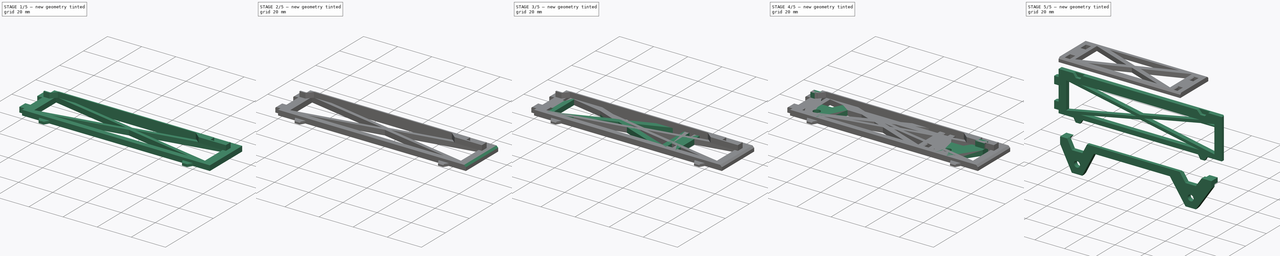
[diagram: build sequence overview — one tinted view per stage of 5, left to right]
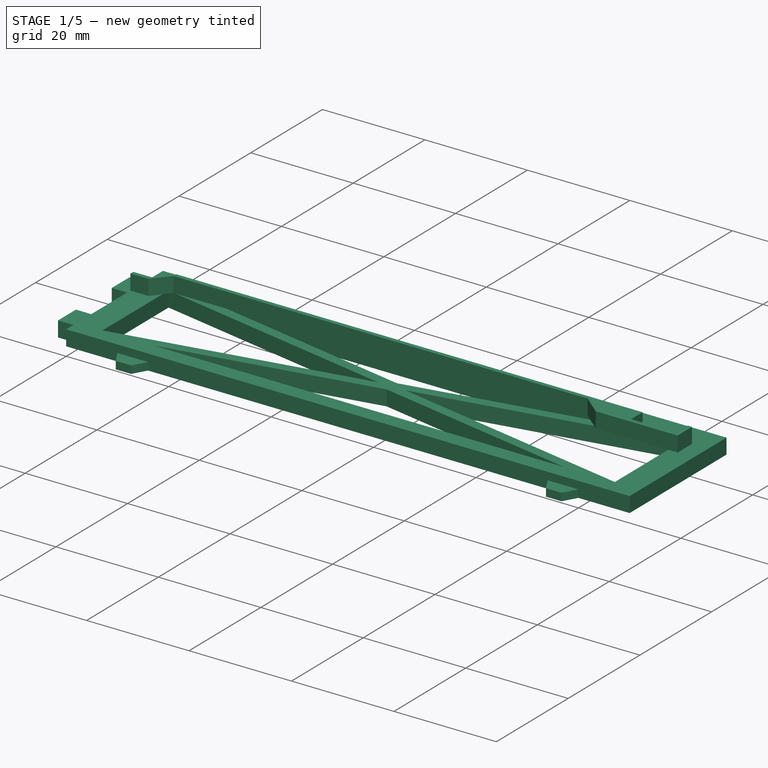
[diagram: stage 1 of 5 — iso view after this stage's code; geometry added in this stage tinted green]
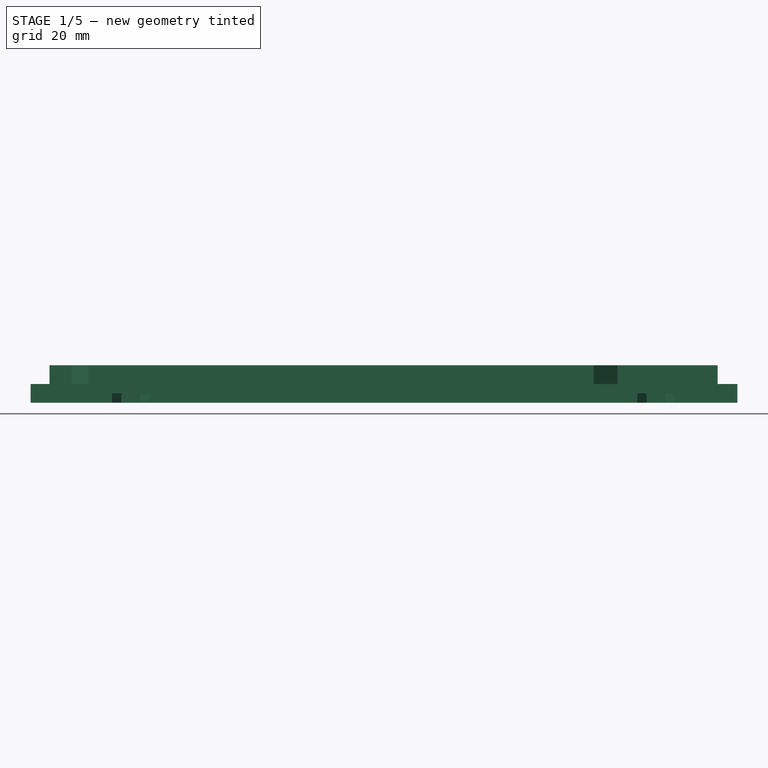
[diagram: stage 1 of 5 — front view after this stage's code; geometry added in this stage tinted green]
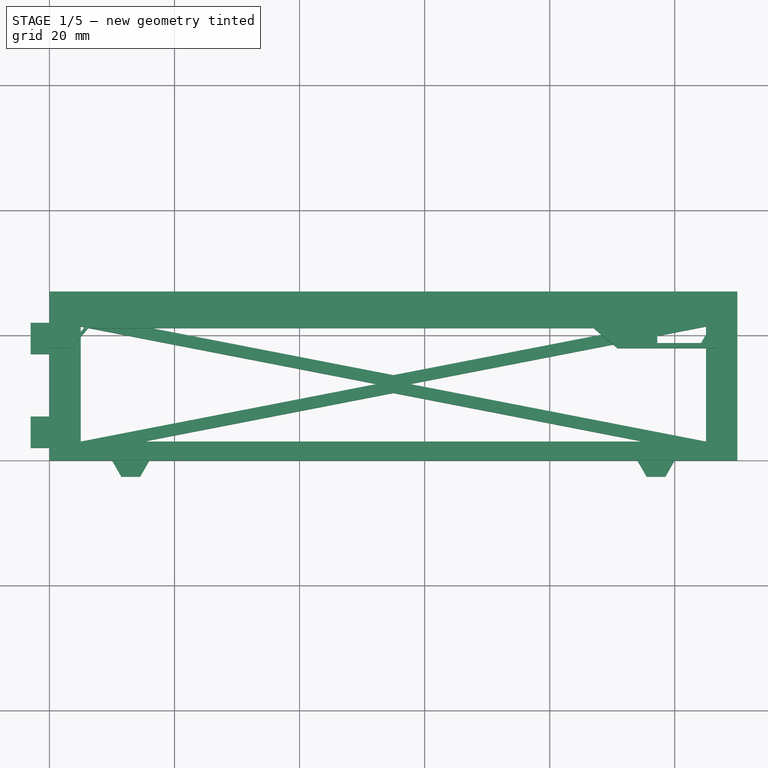
[diagram: stage 1 of 5 — top view after this stage's code; geometry added in this stage tinted green]
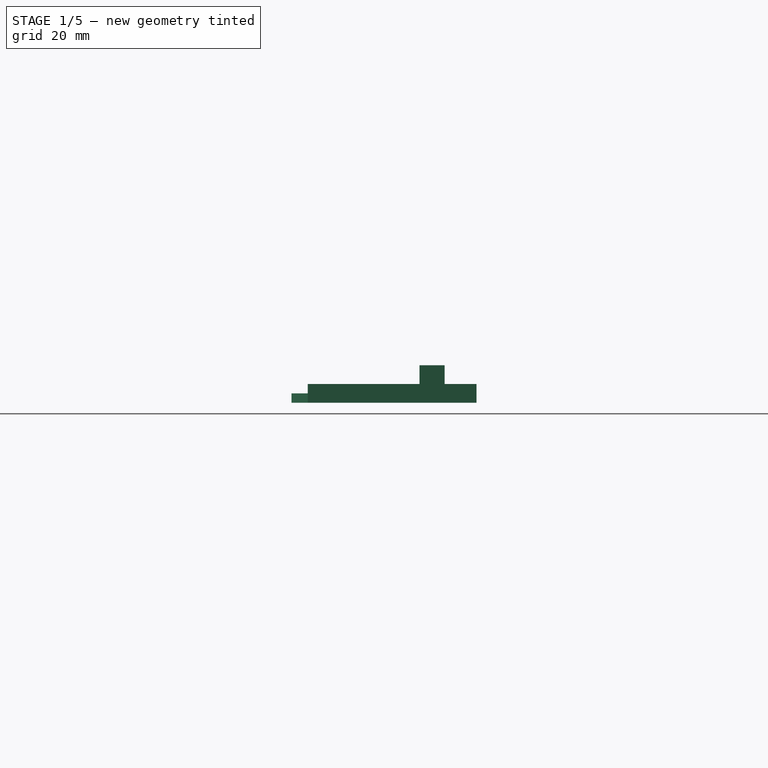
[diagram: stage 1 of 5 — right view after this stage's code; geometry added in this stage tinted green]
FCSTD DOCUMENT  (FreeCAD 0.19R24267 +99 (Git))
Label: CASE
License: All rights reserved
LicenseURL: http://en.wikipedia.org/wiki/All_rights_reserved
objects: PartDesign::Chamfer×15, Sketcher::SketchObject×8, PartDesign::Pad×5, PartDesign::Body×3, PartDesign::Pocket×3, Part::Mirroring×2
note: 59 computed .brp shape members not serialized (recipe doc carries the construction recipe); baked Part::Feature solids carry a one-line shape summary decoded from their .brp

FEATURE [Sketcher::SketchObject] Sketch002
  FullyConstrained = true
  MapMode = 5
  Support = -> [XY_Plane001]
  sketch-geometry (20):
    g0: LineSegment StartX=110 StartY=27 StartZ=0 EndX=110 EndY=0 EndZ=0
    g1: LineSegment StartX=0 StartY=0 StartZ=0 EndX=10 EndY=0 EndZ=0
    g2: LineSegment StartX=10 StartY=0 StartZ=0 EndX=11.5 EndY=-2.59808 EndZ=0
    g3: LineSegment StartX=11.5 StartY=-2.59808 StartZ=0 EndX=14.5 EndY=-2.59808 EndZ=0
    g4: LineSegment StartX=14.5 StartY=-2.59808 StartZ=0 EndX=16 EndY=0 EndZ=0
    g5: LineSegment StartX=16 StartY=0 StartZ=0 EndX=94 EndY=0 EndZ=0
    g6: LineSegment StartX=94 StartY=0 StartZ=0 EndX=95.5 EndY=-2.59808 EndZ=0
    g7: LineSegment StartX=95.5 StartY=-2.59808 StartZ=0 EndX=98.5 EndY=-2.59808 EndZ=0
    g8: LineSegment StartX=98.5 StartY=-2.59808 StartZ=0 EndX=100 EndY=0 EndZ=0
    g9: LineSegment StartX=100 StartY=0 StartZ=0 EndX=110 EndY=0 EndZ=0
    g10: LineSegment StartX=0 StartY=27 StartZ=0 EndX=0 EndY=22 EndZ=0
    g11: LineSegment StartX=0 StartY=22 StartZ=0 EndX=-3 EndY=22 EndZ=0
    g12: LineSegment StartX=-3 StartY=22 StartZ=0 EndX=-3 EndY=17 EndZ=0
    g13: LineSegment StartX=-3 StartY=17 StartZ=0 EndX=0 EndY=17 EndZ=0
    g14: LineSegment StartX=0 StartY=17 StartZ=0 EndX=0 EndY=7 EndZ=0
    g15: LineSegment StartX=0 StartY=7 StartZ=0 EndX=-3 EndY=7 EndZ=0
    g16: LineSegment StartX=-3 StartY=7 StartZ=0 EndX=-3 EndY=2 EndZ=0
    g17: LineSegment StartX=-3 StartY=2 StartZ=0 EndX=0 EndY=2 EndZ=0
    g18: LineSegment StartX=0 StartY=2 StartZ=0 EndX=0 EndY=0 EndZ=0
    g19: LineSegment StartX=0 StartY=27 StartZ=0 EndX=110 EndY=27 EndZ=0
  constraints (59):
    c: Vertical(g0)
    c: Horizontal(g1)
    c: Coincident(g1,g2)
    c: Coincident(g2,g3)
    c: Coincident(g3,g4)
    c: Coincident(g4,g5)
    c: Horizontal(g5)
    c: Coincident(g5,g6)
    c: Coincident(g6,g7)
    c: Horizontal(g7)
    c: Coincident(g7,g8)
    c: Coincident(g8,g9)
    c: Coincident(g9,g0)
    c: Horizontal(g9)
    c: Horizontal(g1,g4)
    c: Horizontal(g5,g8)
    c: Horizontal(g6,g3)
    c: Horizontal(g6,g2)
    c: Distance(g1) = 10
    c: Distance(g2) = 3
    c: Distance(g3) = 3
    c: Distance(g4) = 3
    c: Distance(g6) = 3
    c: Distance(g7) = 3
    c: Distance(g8) = 3
    c: Angle(g4,g3) = 2.0944
    c: Distance(g9) = 10
    c: PointOnObject(g10,g-2)
    c: Vertical(g10)
    c: Coincident(g10,g11)
    c: Coincident(g11,g12)
    c: Coincident(g12,g13)
    c: PointOnObject(g13,g-2)
    c: Coincident(g13,g14)
    c: PointOnObject(g14,g-2)
    c: Coincident(g14,g15)
    c: Coincident(g15,g16)
    c: Coincident(g16,g17)
    c: PointOnObject(g17,g-2)
    c: Coincident(g17,g18)
    c: Coincident(g18,g1)
    c: Vertical(g12,g15)
    c: Vertical(g12)
    c: Vertical(g16)
    c: Horizontal(g11)
    c: Horizontal(g13)
    c: Horizontal(g15)
    c: Horizontal(g17)
    c: Distance(g11) = 3
    c: Distance(g12) = 5
    c: Distance(g16) = 5
    c: Distance(g14) = 10
    c: Distance(g10,g10) = 5
    c: Distance(g0) = 27
    c: Coincident(g1,g-1)
    c: Distance(g10,g0) = 110
    c: Coincident(g19,g10)
    c: Coincident(g19,g0)
    c: Horizontal(g19)
FEATURE [PartDesign::Pad] Pad002
  Direction = (1,1,1)
  Length = 3
  Length2 = 100
  Profile = -> Sketch002
  Type = 0
FEATURE [Sketcher::SketchObject] Sketch006
  ExternalGeometry = -> [Pad002]
  FullyConstrained = true
  MapMode = 5
  Placement = pos=(0,0,0) rot=(1,0,0;3.14159rad)
  Support = -> [Pad002]
  sketch-geometry (8):
    g0: LineSegment StartX=9.8 StartY=-27 StartZ=0 EndX=11.5 EndY=-24.5 EndZ=0
    g1: LineSegment StartX=11.5 StartY=-24.5 StartZ=0 EndX=14.5 EndY=-24.5 EndZ=0
    g2: LineSegment StartX=14.5 StartY=-24.5 StartZ=0 EndX=16.2 EndY=-27 EndZ=0
    g3: LineSegment StartX=93.2 StartY=-27 StartZ=0 EndX=95.5 EndY=-24.5 EndZ=0
    g4: LineSegment StartX=95.5 StartY=-24.5 StartZ=0 EndX=98.5 EndY=-24.5 EndZ=0
    g5: LineSegment StartX=98.5 StartY=-24.5 StartZ=0 EndX=100.8 EndY=-27 EndZ=0
    g6: LineSegment StartX=100.8 StartY=-27 StartZ=0 EndX=93.2 EndY=-27 EndZ=0
    g7: LineSegment StartX=9.8 StartY=-27 StartZ=0 EndX=16.2 EndY=-27 EndZ=0
  constraints (26):
    c: Distance(g-4) = 10
    c: PointOnObject(g0,g-6)
    c: Coincident(g0,g1)
    c: Horizontal(g1)
    c: Coincident(g1,g2)
    c: PointOnObject(g2,g-6)
    c: PointOnObject(g3,g-6)
    c: Coincident(g3,g4)
    c: Horizontal(g4)
    c: Coincident(g4,g5)
    c: PointOnObject(g5,g-6)
    c: Coincident(g5,g6)
    c: Coincident(g6,g3)
    c: Coincident(g0,g7)
    c: Coincident(g7,g2)
    c: Vertical(g-3,g0)
    c: Vertical(g-5,g1)
    c: Vertical(g-7,g3)
    c: Vertical(g-7,g4)
    c: Distance(g-8) = 78
    c: Distance(g2,g3) = 77
    c: Distance(g0,g-6) = 9.8
    c: Equal(g0,g2)
    c: Equal(g3,g5)
    c: Horizontal(g1,g3)
    c: Distance(g4,g6) = 2.5
FEATURE [PartDesign::Pocket] Pocket
  BaseFeature = -> Pad002
  Length = 2
  Length2 = 100
  Profile = -> Sketch006
  Type = 0
FEATURE [Sketcher::SketchObject] Sketch007
  ExternalGeometry = -> [Pocket]
  FullyConstrained = true
  MapMode = 5
  Placement = pos=(0,0,3) rot=(0,0,1;0rad)
  Support = -> [Pocket]
  sketch-geometry (8):
    g0: LineSegment StartX=94 StartY=0 StartZ=0 EndX=100 EndY=0 EndZ=0
    g1: LineSegment StartX=100 StartY=0 StartZ=0 EndX=98.5 EndY=-2.59808 EndZ=0
    g2: LineSegment StartX=98.5 StartY=-2.59808 StartZ=0 EndX=95.5 EndY=-2.59808 EndZ=0
    g3: LineSegment StartX=95.5 StartY=-2.59808 StartZ=0 EndX=94 EndY=0 EndZ=0
    g4: LineSegment StartX=10 StartY=0 StartZ=0 EndX=11.5 EndY=-2.59808 EndZ=0
    g5: LineSegment StartX=11.5 StartY=-2.59808 StartZ=0 EndX=14.5 EndY=-2.59808 EndZ=0
    g6: LineSegment StartX=14.5 StartY=-2.59808 StartZ=0 EndX=16 EndY=0 EndZ=0
    g7: LineSegment StartX=16 StartY=0 StartZ=0 EndX=10 EndY=0 EndZ=0
  constraints (16):
    c: Coincident(g-4,g0)
    c: Coincident(g0,g-5)
    c: Coincident(g0,g1)
    c: Coincident(g1,g-5)
    c: Coincident(g1,g2)
    c: Coincident(g2,g-4)
    c: Coincident(g2,g3)
    c: Coincident(g3,g0)
    c: Coincident(g-8,g4)
    c: Coincident(g4,g-8)
    c: Coincident(g4,g5)
    c: Coincident(g5,g-7)
    c: Coincident(g5,g6)
    c: Coincident(g6,g-7)
    c: Coincident(g6,g7)
    c: Coincident(g7,g4)
FEATURE [PartDesign::Pocket] Pocket001
  BaseFeature = -> Pocket
  Length = 1.5
  Length2 = 100
  Profile = -> Sketch007
  Type = 0
FEATURE [Sketcher::SketchObject] Sketch005
  FullyConstrained = true
  MapMode = 5
  Placement = pos=(0,0,0) rot=(1,0,0;3.14159rad)
  Support = -> [Pocket001]
  sketch-geometry (12):
    g0: LineSegment StartX=5 StartY=-3 StartZ=0 EndX=5 EndY=-21.4019 EndZ=0
    g1: LineSegment StartX=5 StartY=-21.4019 StartZ=0 EndX=52.3348 EndY=-12.201 EndZ=0
    g2: LineSegment StartX=52.3348 StartY=-12.201 StartZ=0 EndX=5 EndY=-3 EndZ=0
    g3: LineSegment StartX=15 StartY=-3 StartZ=0 EndX=55 EndY=-10.7752 EndZ=0
    g4: LineSegment StartX=55 StartY=-10.7752 StartZ=0 EndX=95 EndY=-3 EndZ=0
    g5: LineSegment StartX=95 StartY=-3 StartZ=0 EndX=15 EndY=-3 EndZ=0
    g6: LineSegment StartX=57.6652 StartY=-12.201 StartZ=0 EndX=105 EndY=-3 EndZ=0
    g7: LineSegment StartX=105 StartY=-3 StartZ=0 EndX=105 EndY=-21.4019 EndZ=0
    g8: LineSegment StartX=105 StartY=-21.4019 StartZ=0 EndX=57.6652 EndY=-12.201 EndZ=0
    g9: LineSegment StartX=55 StartY=-13.6267 StartZ=0 EndX=15 EndY=-21.4019 EndZ=0
    g10: LineSegment StartX=15 StartY=-21.4019 StartZ=0 EndX=95 EndY=-21.4019 EndZ=0
    g11: LineSegment StartX=95 StartY=-21.4019 StartZ=0 EndX=55 EndY=-13.6267 EndZ=0
  constraints (36):
    c: Vertical(g0)
    c: Coincident(g0,g1)
    c: Coincident(g1,g2)
    c: Coincident(g2,g0)
    c: Coincident(g3,g4)
    c: Coincident(g4,g5)
    c: Coincident(g5,g3)
    c: Horizontal(g5)
    c: Coincident(g6,g7)
    c: Vertical(g7)
    c: Coincident(g7,g8)
    c: Coincident(g9,g10)
    c: Horizontal(g10)
    c: Coincident(g10,g11)
    c: Coincident(g11,g9)
    c: Vertical(g3,g9)
    c: Horizontal(g1,g6)
    c: Distance(g3,g-1) = 3
    c: Horizontal(g4,g6)
    c: Horizontal(g10,g7)
    c: Horizontal(g3,g0)
    c: Distance(g0,g9) = 10
    c: Distance(g10,g7) = 10
    c: Coincident(g6,g8)
    c: Equal(g2,g1)
    c: Equal(g6,g8)
    c: Equal(g4,g3)
    c: Equal(g9,g11)
    c: Equal(g2,g6)
    c: Equal(g4,g11)
    c: Distance(g-1,g0) = 5
    c: Parallel(g1,g9)
    c: Parallel(g2,g3)
    c: Angle(g2,g1) = 0.383972
    c: DistanceY(g9) = -21.4019
    c: DistanceX(g6) = 57.6652
FEATURE [PartDesign::Pocket] Pocket002
  BaseFeature = -> Pocket001
  Length = 3
  Length2 = 100
  Profile = -> Sketch005
  Type = 0
FEATURE [Sketcher::SketchObject] Sketch003
  ExternalGeometry = -> [Sketch002,Pad002]
  FullyConstrained = true
  MapMode = 5
  Placement = pos=(0,0,3) rot=(0,0,1;0rad)
  Support = -> [Pocket002]
  sketch-geometry (14):
    g0: LineSegment StartX=0 StartY=18.7 StartZ=0 EndX=3.5 EndY=18.7 EndZ=0
    g1: LineSegment StartX=3.5 StartY=18.7 StartZ=0 EndX=6.2 EndY=21.9 EndZ=0
    g2: LineSegment StartX=6.2 StartY=21.9 StartZ=0 EndX=97.2 EndY=21.9 EndZ=0
    g3: LineSegment StartX=97.2 StartY=21.9 StartZ=0 EndX=97.2 EndY=18.7 EndZ=0
    g4: LineSegment StartX=0 StartY=17.9 StartZ=0 EndX=0 EndY=18.7 EndZ=0
    g5: LineSegment StartX=97.2 StartY=18.7 StartZ=0 EndX=104.2 EndY=18.7 EndZ=0
    g6: LineSegment StartX=0 StartY=17.9 StartZ=0 EndX=3.5 EndY=17.9 EndZ=0
    g7: LineSegment StartX=3.5 StartY=17.9 StartZ=0 EndX=6.2 EndY=21.1 EndZ=0
    g8: LineSegment StartX=6.2 StartY=21.1 StartZ=0 EndX=87.0173 EndY=21.1 EndZ=0
    g9: LineSegment StartX=104.2 StartY=18.7 StartZ=0 EndX=106.048 EndY=21.9 EndZ=0
    g10: LineSegment StartX=106.048 StartY=21.9 StartZ=0 EndX=106.848 EndY=21.9 EndZ=0
    g11: LineSegment StartX=106.848 StartY=21.9 StartZ=0 EndX=106.848 EndY=17.8861 EndZ=0
    g12: LineSegment StartX=106.848 StartY=17.8861 StartZ=0 EndX=90.8475 EndY=17.8861 EndZ=0
    g13: LineSegment StartX=87.0173 StartY=21.1 StartZ=0 EndX=90.8475 EndY=17.8861 EndZ=0
  constraints (42):
    c: PointOnObject(g0,g-2)
    c: Horizontal(g0)
    c: Coincident(g0,g1)
    c: Coincident(g1,g2)
    c: Horizontal(g2)
    c: Coincident(g2,g3)
    c: Vertical(g3)
    c: PointOnObject(g4,g-2)
    c: Coincident(g4,g0)
    c: Distance(g2) = 91
    c: Distance(g0) = 3.5
    c: Distance(g0,g-1) = 18.7
    c: Horizontal(g3,g0)
    c: Distance(g0,g2) = 3.2
    c: Distance(g1,g-2) = 6.2
    c: Coincident(g5,g3)
    c: Horizontal(g5)
    c: Coincident(g4,g6)
    c: Horizontal(g6)
    c: Coincident(g6,g7)
    c: Coincident(g7,g8)
    c: Horizontal(g8)
    c: Distance(g8,g2) = 0.8
    c: Vertical(g1,g7)
    c: Distance(g4) = 0.8
    c: Vertical(g0,g6)
    c: Coincident(g5,g9)
    c: Coincident(g9,g10)
    c: Horizontal(g10)
    c: Coincident(g10,g11)
    c: Vertical(g11)
    c: Coincident(g11,g12)
    c: Horizontal(g12)
    c: Horizontal(g2,g9)
    c: Coincident(g8,g13)
    c: Coincident(g12,g13)
    c: Distance(g12) = 16
    c: Distance(g10) = 0.8
    c: Angle(g9,g5) = 2.0944
    c: Distance(g13) = 5
    c: Angle(g12,g13) = 2.44346
    c: Distance(g5) = 7
FEATURE [PartDesign::Pad] Pad006
  BaseFeature = -> Pocket002
  Direction = (1,1,1)
  Length = 3
  Length2 = 100
  Profile = -> Sketch003
  Type = 0
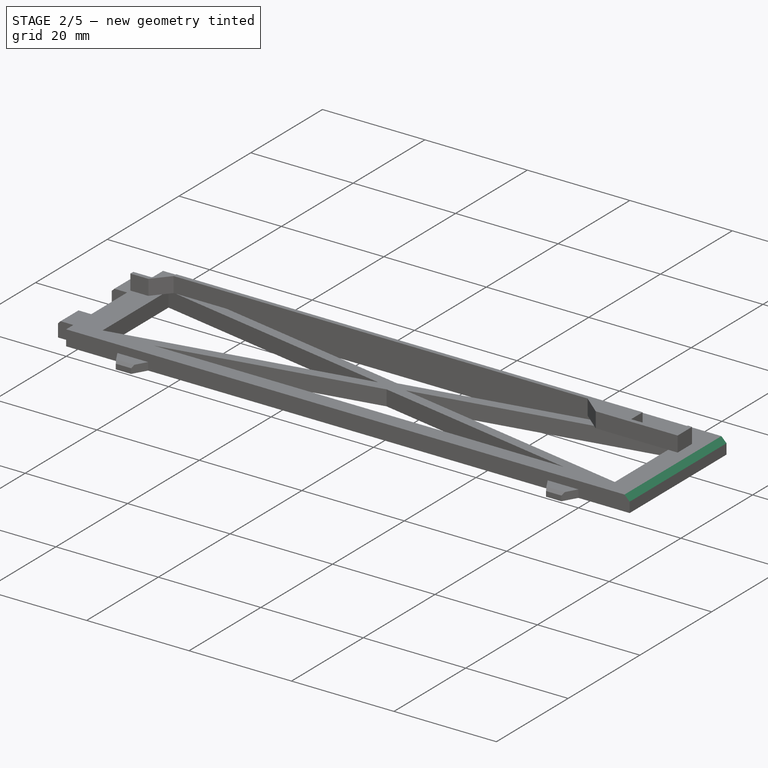
[diagram: stage 2 of 5 — iso view after this stage's code; geometry added in this stage tinted green]
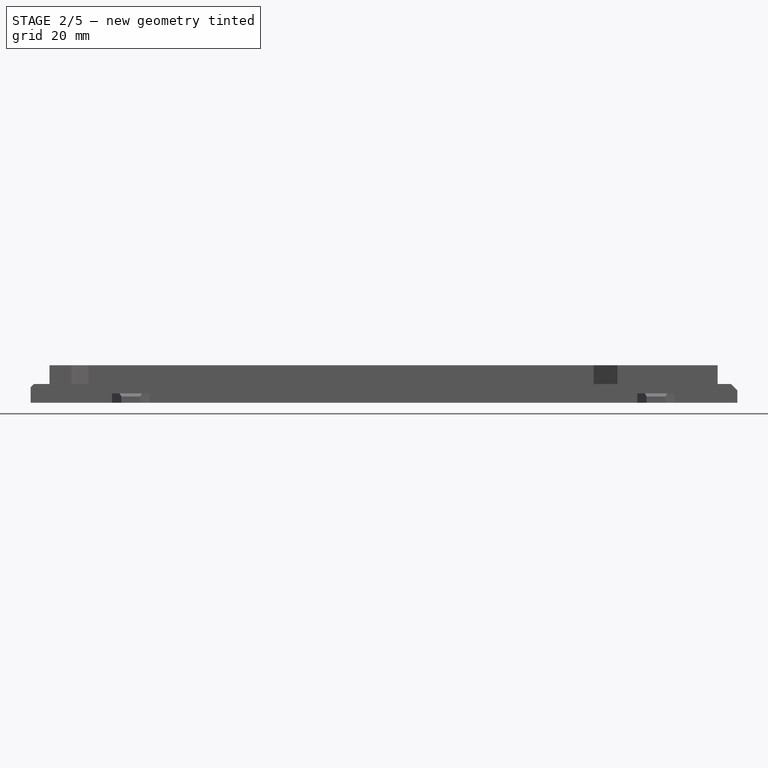
[diagram: stage 2 of 5 — front view after this stage's code; geometry added in this stage tinted green]
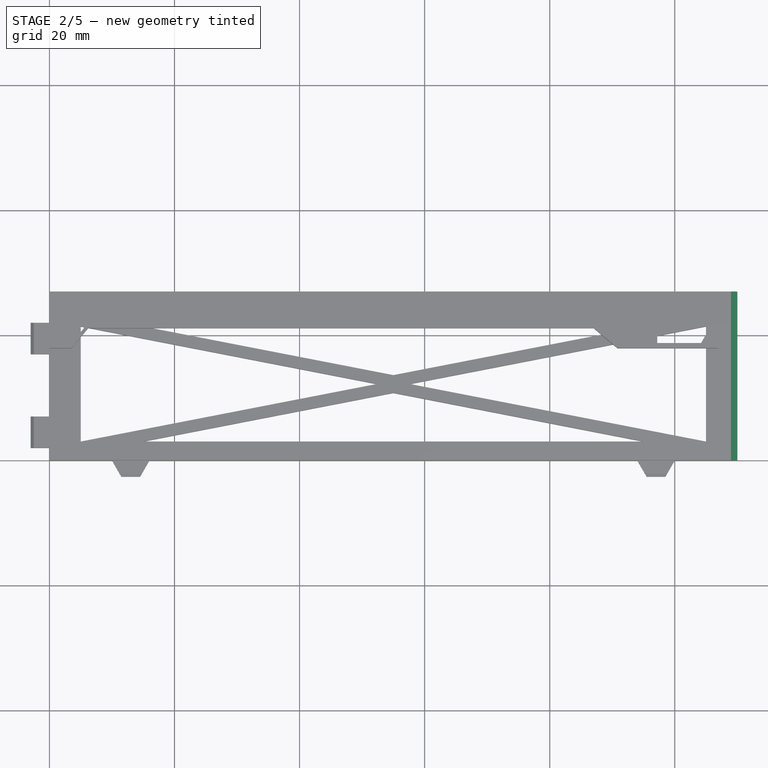
[diagram: stage 2 of 5 — top view after this stage's code; geometry added in this stage tinted green]
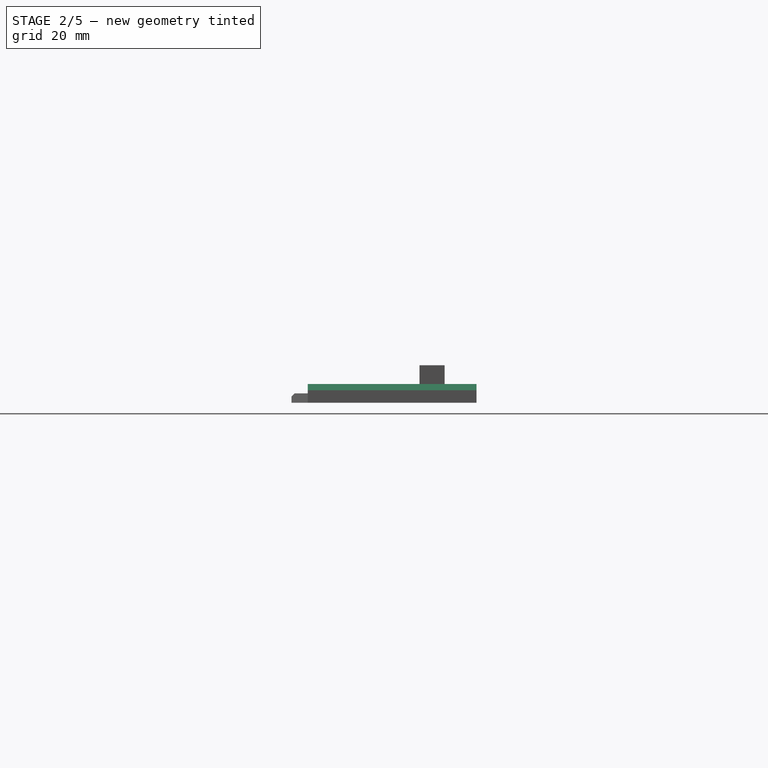
[diagram: stage 2 of 5 — right view after this stage's code; geometry added in this stage tinted green]
FEATURE [PartDesign::Chamfer] Chamfer014
  Angle = 45
  Base = -> Pad006 [Edge61]
  BaseFeature = -> Pad006
  ChamferType = 0
  FlipDirection = false
  Size = 1
  Size2 = 1
  SupportTransform = false
FEATURE [PartDesign::Chamfer] Chamfer015
  Angle = 45
  Base = -> Chamfer014 [Edge129]
  BaseFeature = -> Chamfer014
  ChamferType = 0
  FlipDirection = false
  Size = 0.5
  Size2 = 1
  SupportTransform = false
FEATURE [PartDesign::Chamfer] Chamfer016
  Angle = 45
  Base = -> Chamfer015 [Edge135]
  BaseFeature = -> Chamfer015
  ChamferType = 0
  FlipDirection = false
  Size = 0.5
  Size2 = 1
  SupportTransform = false
FEATURE [PartDesign::Body] Body002
  Group = -> [Sketch004,Pad004,Chamfer017,Chamfer018,Chamfer019,Chamfer020,Chamfer021,Chamfer022]
  Origin = -> Origin002
  Placement = pos=(-38,0,-34) rot=(0.57735,0.57735,0.57735;4.18879rad)
  Tip = -> Chamfer022
FEATURE [PartDesign::Chamfer] Chamfer023
  Angle = 45
  Base = -> Chamfer016 [Edge72]
  BaseFeature = -> Chamfer016
  ChamferType = 0
  FlipDirection = false
  Size = 0.5
  Size2 = 1
  SupportTransform = false
FEATURE [PartDesign::Chamfer] Chamfer024
  Angle = 45
  Base = -> Chamfer023 [Edge56]
  BaseFeature = -> Chamfer023
  ChamferType = 0
  FlipDirection = false
  Size = 0.5
  Size2 = 1
  SupportTransform = false
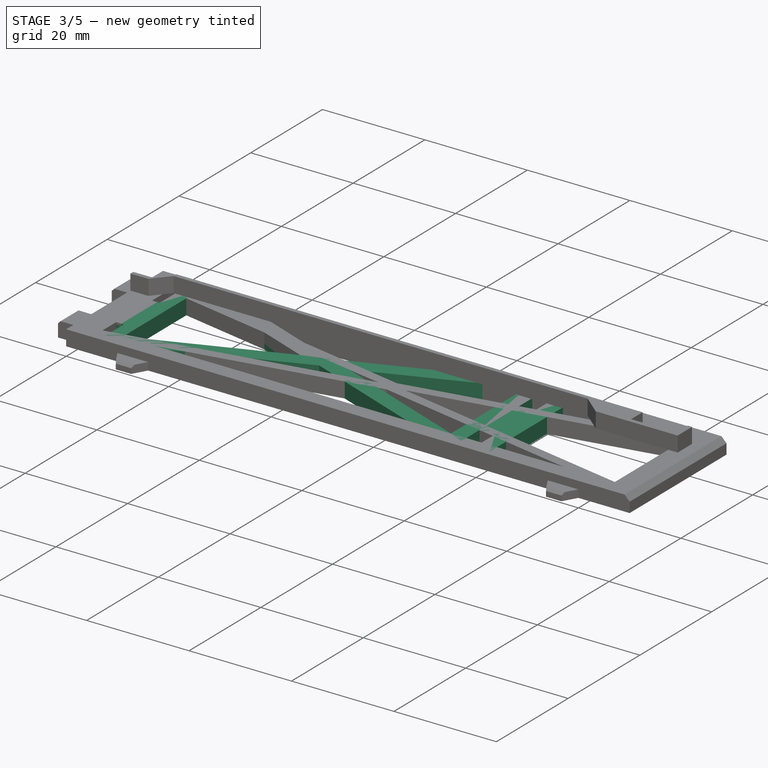
[diagram: stage 3 of 5 — iso view after this stage's code; geometry added in this stage tinted green]
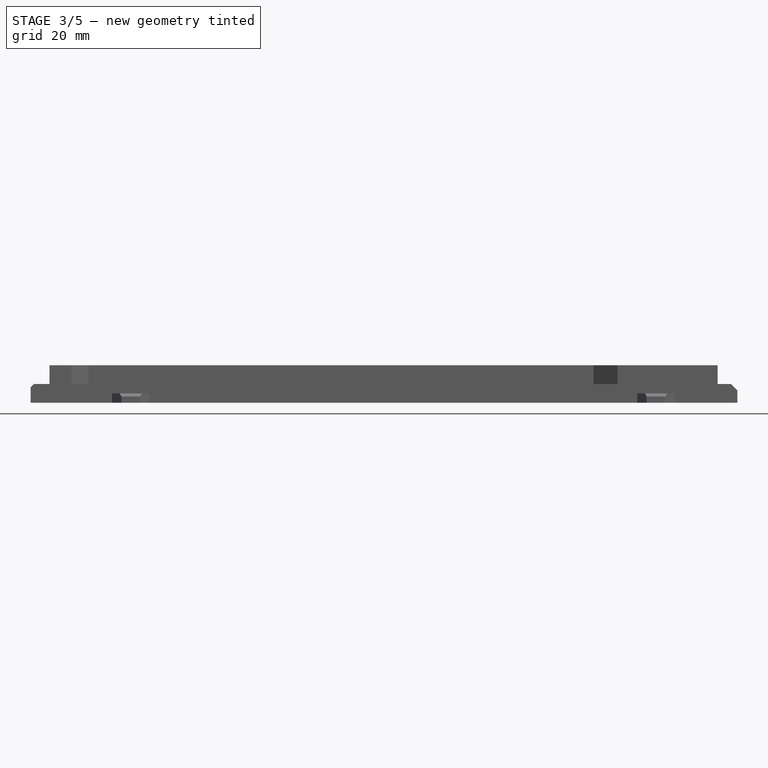
[diagram: stage 3 of 5 — front view after this stage's code; geometry added in this stage tinted green]
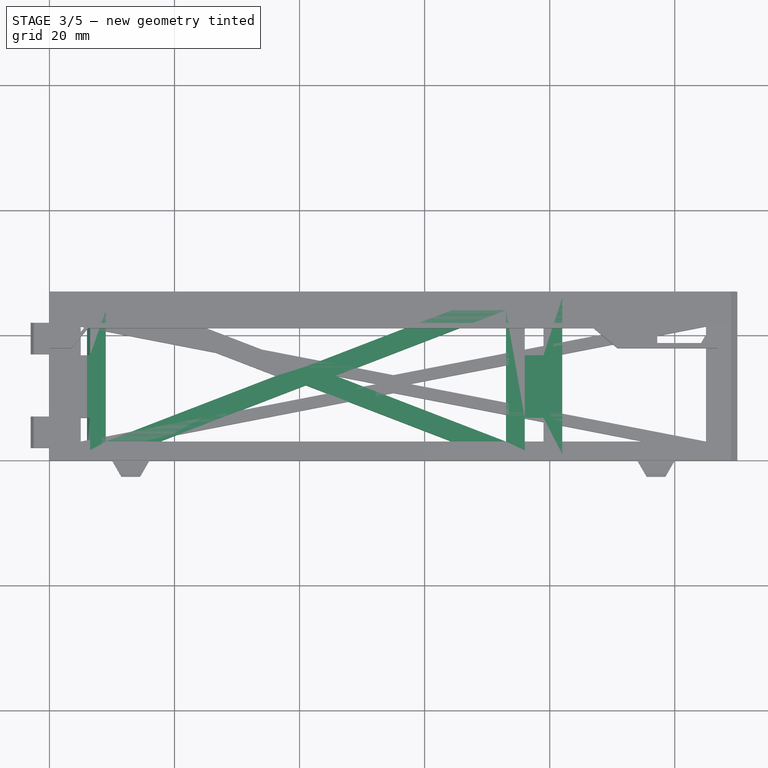
[diagram: stage 3 of 5 — top view after this stage's code; geometry added in this stage tinted green]
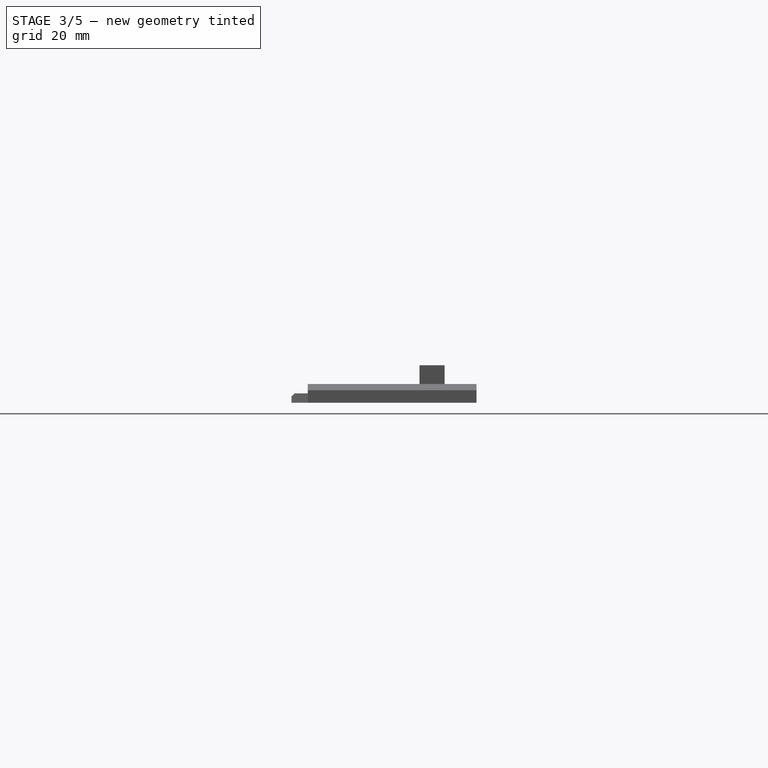
[diagram: stage 3 of 5 — right view after this stage's code; geometry added in this stage tinted green]
FEATURE [Sketcher::SketchObject] Sketch004
  FullyConstrained = true
  MapMode = 5
  Support = -> [XY_Plane002]
  sketch-geometry (32):
    g0: LineSegment StartX=0 StartY=0 StartZ=0 EndX=82 EndY=0 EndZ=0
    g1: LineSegment StartX=82 StartY=0 StartZ=0 EndX=82 EndY=27 EndZ=0
    g2: LineSegment StartX=82 StartY=27 StartZ=0 EndX=0 EndY=27 EndZ=0
    g3: LineSegment StartX=0 StartY=27 StartZ=0 EndX=0 EndY=0 EndZ=0
    g4: LineSegment StartX=6 StartY=22 StartZ=0 EndX=3 EndY=22 EndZ=0
    g5: LineSegment StartX=3 StartY=22 StartZ=0 EndX=3 EndY=16.8 EndZ=0
    g6: LineSegment StartX=3 StartY=16.8 StartZ=0 EndX=6 EndY=16.8 EndZ=0
    g7: LineSegment StartX=6 StartY=16.8 StartZ=0 EndX=6 EndY=22 EndZ=0
    g8: LineSegment StartX=3 StartY=6.8 StartZ=0 EndX=6 EndY=6.8 EndZ=0
    g9: LineSegment StartX=6 StartY=6.8 StartZ=0 EndX=6 EndY=1.6 EndZ=0
    g10: LineSegment StartX=6 StartY=1.6 StartZ=0 EndX=3 EndY=1.6 EndZ=0
    g11: LineSegment StartX=3 StartY=1.6 StartZ=0 EndX=3 EndY=6.8 EndZ=0
    g12: LineSegment StartX=76 StartY=22 StartZ=0 EndX=79 EndY=22 EndZ=0
    g13: LineSegment StartX=79 StartY=22 StartZ=0 EndX=79 EndY=16.8 EndZ=0
    g14: LineSegment StartX=79 StartY=16.8 StartZ=0 EndX=76 EndY=16.8 EndZ=0
    g15: LineSegment StartX=76 StartY=16.8 StartZ=0 EndX=76 EndY=22 EndZ=0
    g16: LineSegment StartX=79 StartY=6.8 StartZ=0 EndX=76 EndY=6.8 EndZ=0
    g17: LineSegment StartX=76 StartY=6.8 StartZ=0 EndX=76 EndY=1.6 EndZ=0
    g18: LineSegment StartX=76 StartY=1.6 StartZ=0 EndX=79 EndY=1.6 EndZ=0
    g19: LineSegment StartX=79 StartY=1.6 StartZ=0 EndX=79 EndY=6.8 EndZ=0
    g20: LineSegment StartX=9 StartY=24 StartZ=0 EndX=9 EndY=3 EndZ=0
    g21: LineSegment StartX=9 StartY=3 StartZ=0 EndX=36.2303 EndY=13.5 EndZ=0
    g22: LineSegment StartX=36.2303 StartY=13.5 StartZ=0 EndX=9 EndY=24 EndZ=0
    g23: LineSegment StartX=45.7697 StartY=13.5 StartZ=0 EndX=73 EndY=24 EndZ=0
    g24: LineSegment StartX=73 StartY=24 StartZ=0 EndX=73 EndY=3 EndZ=0
    g25: LineSegment StartX=73 StartY=3 StartZ=0 EndX=45.7697 EndY=13.5 EndZ=0
    g26: LineSegment StartX=17.6597 StartY=24 StartZ=0 EndX=64.3403 EndY=24 EndZ=0
    g27: LineSegment StartX=64.3403 StartY=24 StartZ=0 EndX=41 EndY=15 EndZ=0
    g28: LineSegment StartX=41 StartY=15 StartZ=0 EndX=17.6597 EndY=24 EndZ=0
    g29: LineSegment StartX=41 StartY=12 StartZ=0 EndX=17.6597 EndY=3 EndZ=0
    g30: LineSegment StartX=17.6597 StartY=3 StartZ=0 EndX=64.3403 EndY=3 EndZ=0
    g31: LineSegment StartX=64.3403 StartY=3 StartZ=0 EndX=41 EndY=12 EndZ=0
  constraints (95):
    c: Coincident(g0,g1)
    c: Coincident(g1,g2)
    c: Coincident(g2,g3)
    c: Coincident(g3,g0)
    c: Horizontal(g0)
    c: Horizontal(g2)
    c: Vertical(g1)
    c: Vertical(g3)
    c: Coincident(g0,g-1)
    c: Distance(g1) = 27
    c: Coincident(g4,g5)
    c: Coincident(g5,g6)
    c: Coincident(g6,g7)
    c: Coincident(g7,g4)
    c: Horizontal(g4)
    c: Horizontal(g6)
    c: Vertical(g5)
    c: Vertical(g7)
    c: Coincident(g8,g9)
    c: Coincident(g9,g10)
    c: Coincident(g10,g11)
    c: Coincident(g11,g8)
    c: Horizontal(g8)
    c: Horizontal(g10)
    c: Vertical(g9)
    c: Vertical(g11)
    c: Coincident(g12,g13)
    c: Coincident(g13,g14)
    c: Coincident(g14,g15)
    c: Coincident(g15,g12)
    c: Horizontal(g12)
    c: Horizontal(g14)
    c: Vertical(g13)
    c: Vertical(g15)
    c: Coincident(g16,g17)
    c: Coincident(g17,g18)
    c: Coincident(g18,g19)
    c: Coincident(g19,g16)
    c: Horizontal(g16)
    c: Horizontal(g18)
    c: Vertical(g17)
    c: Vertical(g19)
    c: Distance(g4) = 3
    c: Distance(g14) = 3
    c: Distance(g13) = 5.2
    c: Vertical(g16,g14)
    c: Vertical(g16,g13)
    c: Horizontal(g4,g12)
    c: Horizontal(g6,g14)
    c: Distance(g19) = 5.2
    c: Distance(g13,g16) = 10
    c: Vertical(g6,g8)
    c: Vertical(g8,g5)
    c: Horizontal(g9,g17)
    c: Horizontal(g8,g16)
    c: Distance(g4,g3) = 3
    c: Distance(g12,g1) = 3
    c: Distance(g4,g2) = 5
    c: Vertical(g20)
    c: Coincident(g20,g21)
    c: Coincident(g21,g22)
    c: Coincident(g22,g20)
    c: Coincident(g23,g24)
    c: Vertical(g24)
    c: Coincident(g24,g25)
    c: Coincident(g25,g23)
    c: Horizontal(g26)
    c: Coincident(g26,g27)
    c: Coincident(g27,g28)
    c: Coincident(g28,g26)
    c: Coincident(g29,g30)
    c: Horizontal(g30)
    c: Coincident(g30,g31)
    c: Coincident(g31,g29)
    c: Distance(g27,g21) = 5
    c: Distance(g27,g23) = 5
    c: Horizontal(g21,g23)
    c: Vertical(g27,g29)
    c: Distance(g27,g29) = 3
    c: Distance(g21,g29) = 5
    c: Horizontal(g20,g26)
    c: Horizontal(g20,g29)
    c: Horizontal(g24,g30)
    c: Horizontal(g23,g26)
    c: Parallel(g27,g23)
    c: Parallel(g25,g31)
    c: Parallel(g28,g22)
    c: Parallel(g21,g29)
    c: Distance(g26,g2) = 3
    c: Distance(g30,g0) = 3
    c: Distance(g20,g9) = 3
    c: Distance(g24,g17) = 3
    c: Equal(g26,g30)
    c: Equal(g22,g23)
    c: Distance(g4,g12) = 70
FEATURE [PartDesign::Pad] Pad004
  Direction = (1,1,1)
  Length = 3
  Length2 = 100
  Profile = -> Sketch004
  Type = 0
FEATURE [PartDesign::Chamfer] Chamfer017
  Angle = 45
  Base = -> Pad004 [Edge4]
  BaseFeature = -> Pad004
  ChamferType = 0
  FlipDirection = false
  Size = 1
  Size2 = 1
  SupportTransform = false
FEATURE [PartDesign::Chamfer] Chamfer018
  Angle = 45
  Base = -> Chamfer017 [Edge43]
  BaseFeature = -> Chamfer017
  ChamferType = 0
  FlipDirection = false
  Size = 1
  Size2 = 1
  SupportTransform = false
FEATURE [PartDesign::Chamfer] Chamfer019
  Angle = 45
  Base = -> Chamfer018 [Edge35]
  BaseFeature = -> Chamfer018
  ChamferType = 0
  FlipDirection = false
  Size = 0.5
  Size2 = 1
  SupportTransform = false
FEATURE [PartDesign::Chamfer] Chamfer020
  Angle = 45
  Base = -> Chamfer019 [Edge27]
  BaseFeature = -> Chamfer019
  ChamferType = 0
  FlipDirection = false
  Size = 0.5
  Size2 = 1
  SupportTransform = false
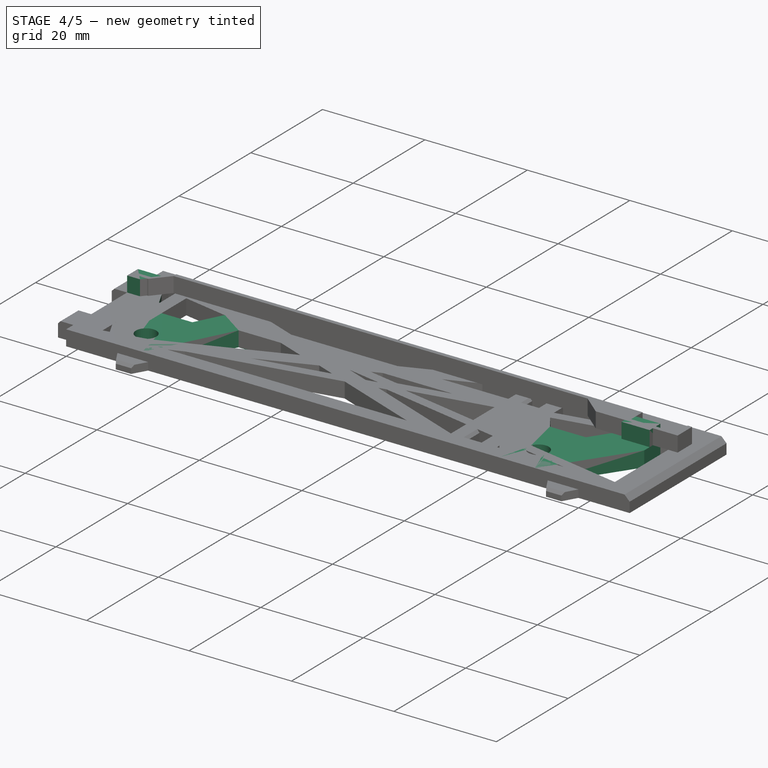
[diagram: stage 4 of 5 — iso view after this stage's code; geometry added in this stage tinted green]
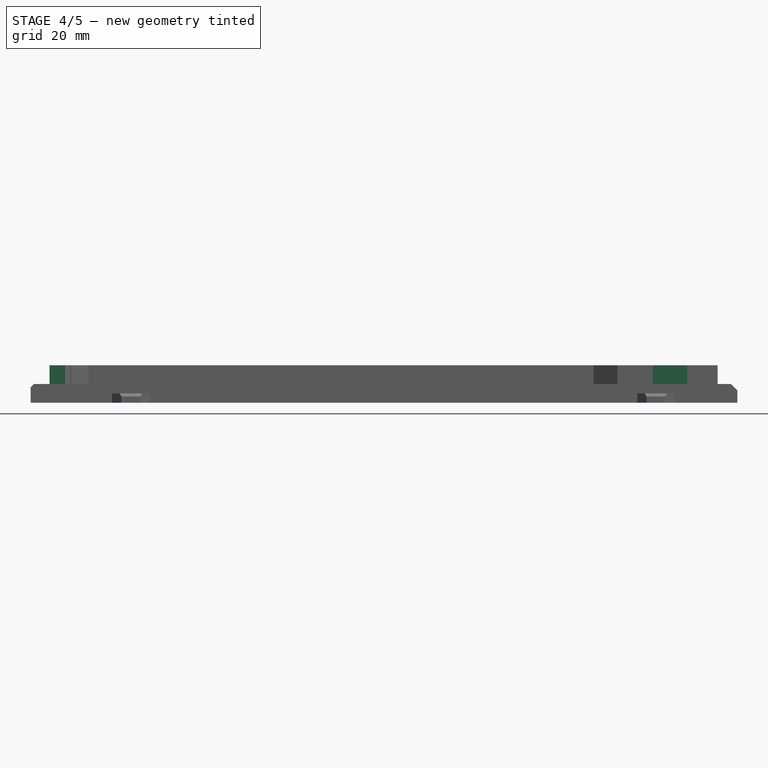
[diagram: stage 4 of 5 — front view after this stage's code; geometry added in this stage tinted green]
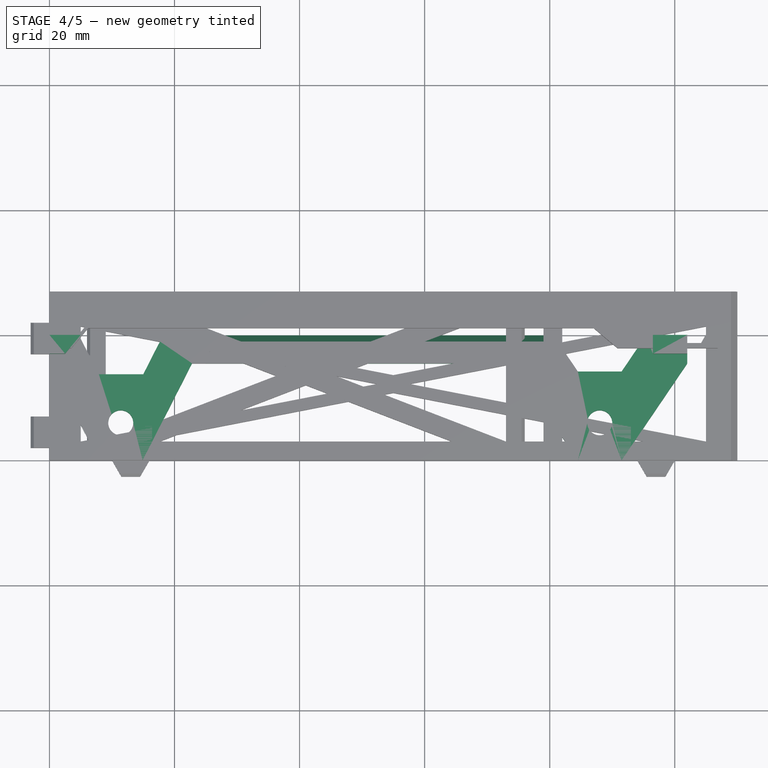
[diagram: stage 4 of 5 — top view after this stage's code; geometry added in this stage tinted green]
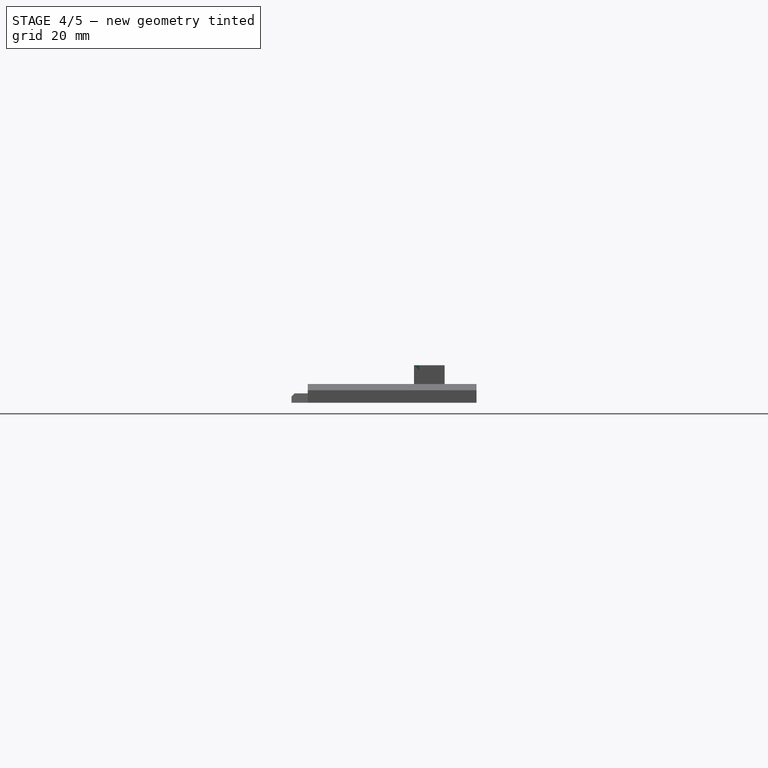
[diagram: stage 4 of 5 — right view after this stage's code; geometry added in this stage tinted green]
FEATURE [Sketcher::SketchObject] Sketch
  FullyConstrained = true
  MapMode = 5
  Support = -> [XY_Plane]
  sketch-geometry (24):
    g0: LineSegment StartX=102 StartY=15.5 StartZ=0 EndX=102 EndY=20 EndZ=0
    g1: LineSegment StartX=0 StartY=20 StartZ=0 EndX=0 EndY=15.5 EndZ=0
    g2: Circle CenterX=11.4 CenterY=6 CenterZ=0 NormalX=0 NormalY=0 NormalZ=1 AngleXU=0 Radius=2
    g3: Circle CenterX=88 CenterY=6 CenterZ=0 NormalX=0 NormalY=0 NormalZ=1 AngleXU=0 Radius=2
    g4: LineSegment StartX=102 StartY=15.5 StartZ=0 EndX=91.5 EndY=0 EndZ=0
    g5: LineSegment StartX=91.5 StartY=0 StartZ=0 EndX=84.5 EndY=0 EndZ=0
    g6: LineSegment StartX=84.5 StartY=0 StartZ=0 EndX=74 EndY=15.5 EndZ=0
    g7: LineSegment StartX=74 StartY=15.5 StartZ=0 EndX=22.8 EndY=15.5 EndZ=0
    g8: LineSegment StartX=22.8 StartY=15.5 StartZ=0 EndX=14.9 EndY=0 EndZ=0
    g9: LineSegment StartX=14.9 StartY=0 StartZ=0 EndX=7.9 EndY=0 EndZ=0
    g10: LineSegment StartX=7.9 StartY=0 StartZ=0 EndX=0 EndY=15.5 EndZ=0
    g11: LineSegment StartX=11.4 StartY=6 StartZ=0 EndX=7.9 EndY=0 EndZ=0
    g12: LineSegment StartX=11.4 StartY=6 StartZ=0 EndX=14.9 EndY=0 EndZ=0
    g13: LineSegment StartX=88 StartY=6 StartZ=0 EndX=84.5 EndY=0 EndZ=0
    g14: LineSegment StartX=88 StartY=6 StartZ=0 EndX=91.5 EndY=0 EndZ=0
    g15: LineSegment StartX=0 StartY=20 StartZ=0 EndX=4.72131 EndY=20 EndZ=0
    g16: LineSegment StartX=4.72131 StartY=20 StartZ=0 EndX=7.9 EndY=13.7633 EndZ=0
    g17: LineSegment StartX=7.9 StartY=13.7633 StartZ=0 EndX=15 EndY=13.7633 EndZ=0
    g18: LineSegment StartX=15 StartY=13.7633 StartZ=0 EndX=18.1787 EndY=20 EndZ=0
    g19: LineSegment StartX=18.1787 StartY=20 StartZ=0 EndX=80.5741 EndY=20 EndZ=0
    g20: LineSegment StartX=80.5741 StartY=20 StartZ=0 EndX=84.5 EndY=14.2046 EndZ=0
    g21: LineSegment StartX=84.5 StartY=14.2046 StartZ=0 EndX=91.5 EndY=14.2046 EndZ=0
    g22: LineSegment StartX=91.5 StartY=14.2046 StartZ=0 EndX=95.4259 EndY=20 EndZ=0
    g23: LineSegment StartX=95.4259 StartY=20 StartZ=0 EndX=102 EndY=20 EndZ=0
  constraints (68):
    c: Vertical(g0)
    c: Vertical(g1)
    c: Horizontal(g2,g3)
    c: Distance(g3,g0) = 14
    c: Distance(g2,g0) = 90.6
    c: Radius(g3) = 2
    c: Equal(g3,g2)
    c: Coincident(g4,g5)
    c: Horizontal(g5)
    c: Coincident(g5,g6)
    c: Equal(g6,g4)
    c: Horizontal(g6,g4)
    c: Coincident(g6,g7)
    c: Horizontal(g7)
    c: Coincident(g7,g8)
    c: Coincident(g8,g9)
    c: Horizontal(g9)
    c: Coincident(g9,g10)
    c: Horizontal(g10,g7)
    c: Equal(g10,g8)
    c: Coincident(g1,g10)
    c: Coincident(g0,g4)
    c: Distance(g3,g5) = 6
    c: Horizontal(g8,g5)
    c: PointOnObject(g9,g-1)
    c: PointOnObject(g1,g-2)
    c: Distance(g1) = 4.5
    c: Coincident(g11,g2)
    c: Coincident(g11,g9)
    c: Coincident(g12,g2)
    c: Coincident(g12,g8)
    c: Equal(g11,g12)
    c: Coincident(g13,g3)
    c: Coincident(g13,g5)
    c: Coincident(g14,g3)
    c: Coincident(g14,g4)
    c: Equal(g13,g14)
    c: Equal(g9,g5)
    c: Distance(g9) = 7
    c: Distance(g0,g1) = 102
    c: Coincident(g1,g15)
    c: Horizontal(g15)
    c: Coincident(g15,g16)
    c: Coincident(g16,g17)
    c: Horizontal(g17)
    c: Coincident(g17,g18)
    c: Coincident(g18,g19)
    c: Horizontal(g19)
    c: Coincident(g19,g20)
    c: Coincident(g20,g21)
    c: Horizontal(g21)
    c: Coincident(g21,g22)
    c: Coincident(g22,g23)
    c: Coincident(g23,g0)
    c: Horizontal(g23)
    c: Horizontal(g19,g22)
    c: Horizontal(g15,g18)
    c: Parallel(g10,g16)
    c: Parallel(g18,g8)
    c: Vertical(g16,g9)
    c: Vertical(g20,g5)
    c: Vertical(g21,g4)
    c: Parallel(g20,g6)
    c: Parallel(g22,g4)
    c: Distance(g17) = 7.1
    c: Distance(g18) = 7
    c: Distance(g20) = 7
    c: Distance(g0,g-1) = 20
FEATURE [PartDesign::Pad] Pad
  Direction = (1,1,1)
  Length = 3
  Length2 = 100
  Profile = -> Sketch
  Type = 0
FEATURE [Sketcher::SketchObject] Sketch001
  ExternalGeometry = -> [Pad]
  FullyConstrained = true
  MapMode = 5
  Placement = pos=(0,0,3) rot=(0,0,1;0rad)
  Support = -> [Pad]
  sketch-geometry (8):
    g0: LineSegment StartX=0 StartY=20 StartZ=0 EndX=5 EndY=20 EndZ=0
    g1: LineSegment StartX=5 StartY=20 StartZ=0 EndX=2.5 EndY=17 EndZ=0
    g2: LineSegment StartX=2.5 StartY=17 StartZ=0 EndX=0 EndY=17 EndZ=0
    g3: LineSegment StartX=0 StartY=17 StartZ=0 EndX=0 EndY=20 EndZ=0
    g4: LineSegment StartX=102 StartY=20 StartZ=0 EndX=96.5 EndY=20 EndZ=0
    g5: LineSegment StartX=96.5 StartY=20 StartZ=0 EndX=96.5 EndY=17 EndZ=0
    g6: LineSegment StartX=96.5 StartY=17 StartZ=0 EndX=102 EndY=17 EndZ=0
    g7: LineSegment StartX=102 StartY=17 StartZ=0 EndX=102 EndY=20 EndZ=0
  constraints (22):
    c: Coincident(g0,g1)
    c: Coincident(g1,g2)
    c: Horizontal(g2)
    c: Coincident(g2,g3)
    c: Coincident(g3,g0)
    c: Vertical(g3)
    c: Horizontal(g0)
    c: Distance(g2) = 2.5
    c: Distance(g0) = 5
    c: Distance(g3) = 3
    c: Coincident(g0,g-3)
    c: Coincident(g4,g5)
    c: Coincident(g5,g6)
    c: Coincident(g6,g7)
    c: Coincident(g7,g4)
    c: Horizontal(g4)
    c: Horizontal(g6)
    c: Vertical(g5)
    c: Vertical(g7)
    c: Coincident(g4,g-4)
    c: Distance(g5) = 3
    c: Distance(g6) = 5.5
FEATURE [PartDesign::Pad] Pad005
  BaseFeature = -> Pad
  Direction = (1,1,1)
  Length = 3
  Length2 = 100
  Profile = -> Sketch001
  Type = 0
FEATURE [PartDesign::Chamfer] Chamfer
  Angle = 45
  Base = -> Pad005 [Edge40]
  BaseFeature = -> Pad005
  ChamferType = 0
  FlipDirection = false
  Size = 1
  Size2 = 1
  SupportTransform = false
FEATURE [PartDesign::Chamfer] Chamfer021
  Angle = 45
  Base = -> Chamfer020 [Edge35]
  BaseFeature = -> Chamfer020
  ChamferType = 0
  FlipDirection = false
  Size = 0.5
  Size2 = 1
  SupportTransform = false
FEATURE [PartDesign::Chamfer] Chamfer022
  Angle = 45
  Base = -> Chamfer021 [Edge38]
  BaseFeature = -> Chamfer021
  ChamferType = 0
  FlipDirection = false
  Size = 0.5
  Size2 = 1
  SupportTransform = false
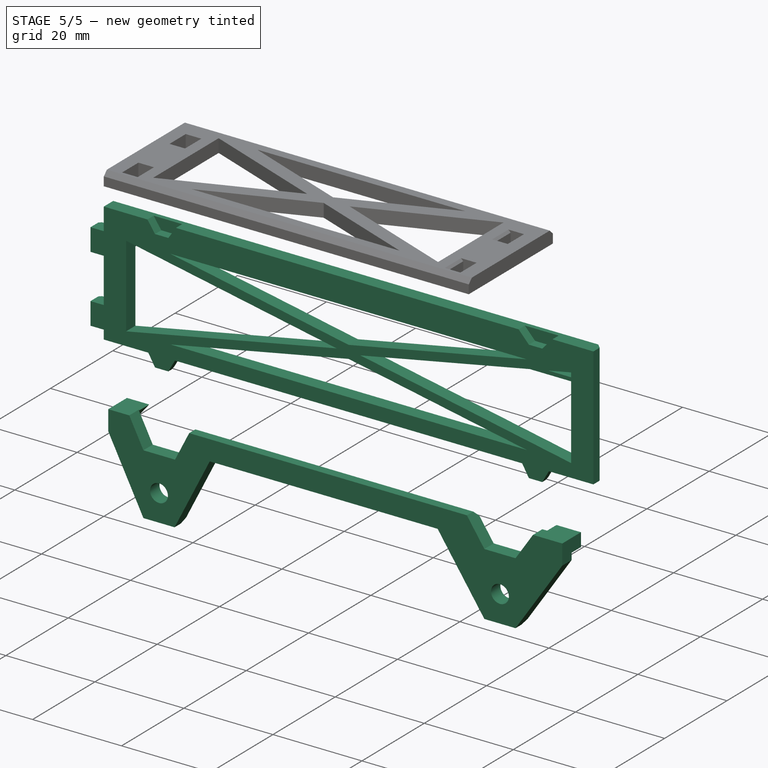
[diagram: stage 5 of 5 — iso view after this stage's code; geometry added in this stage tinted green]
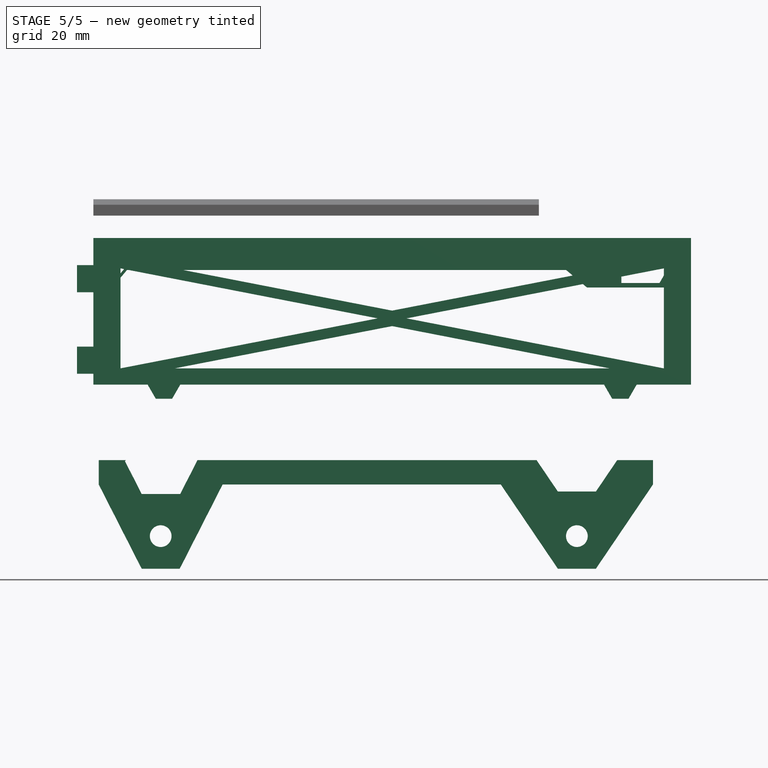
[diagram: stage 5 of 5 — front view after this stage's code; geometry added in this stage tinted green]
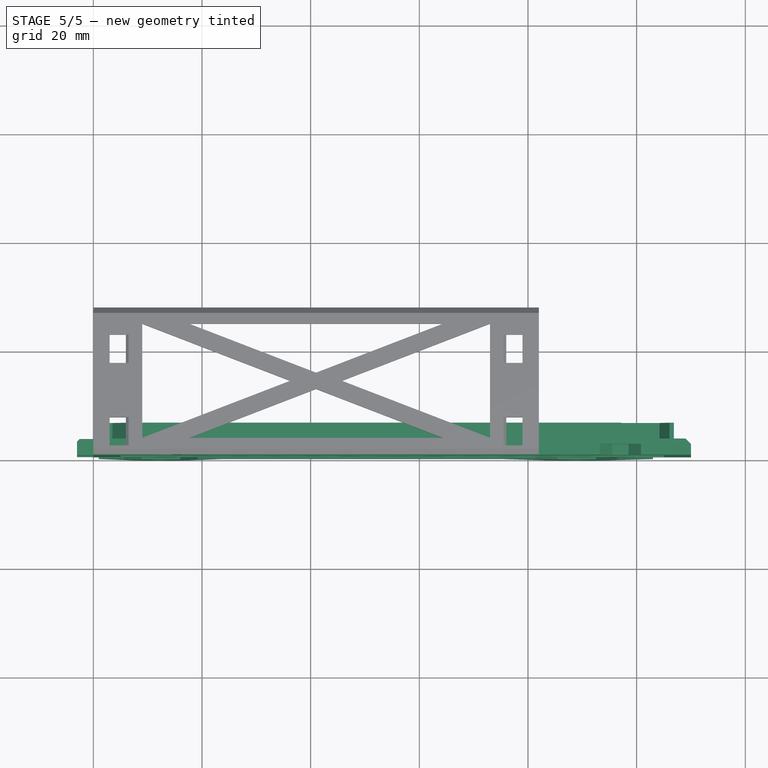
[diagram: stage 5 of 5 — top view after this stage's code; geometry added in this stage tinted green]
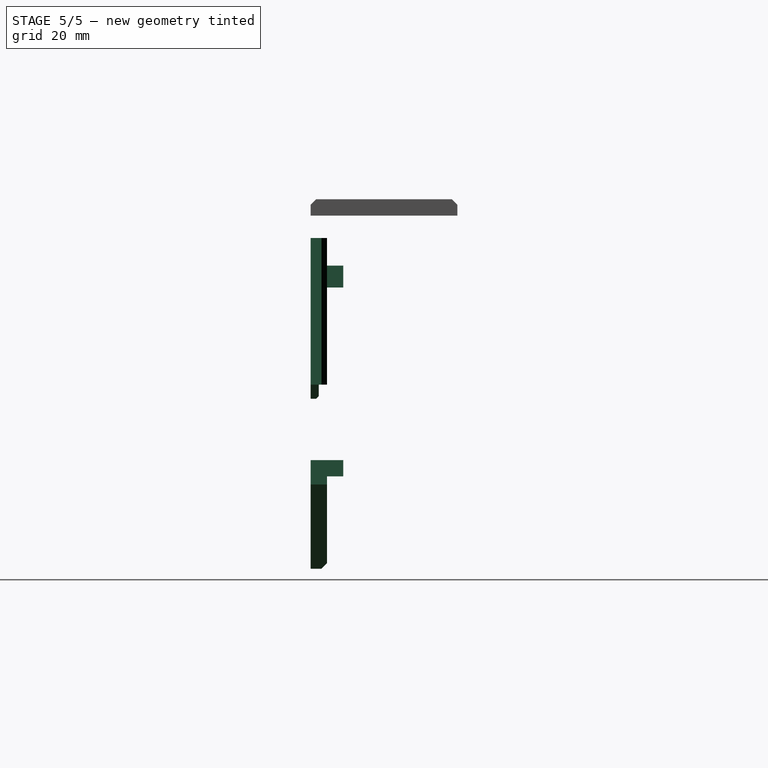
[diagram: stage 5 of 5 — right view after this stage's code; geometry added in this stage tinted green]
FEATURE [PartDesign::Chamfer] Chamfer009
  Angle = 45
  Base = -> Chamfer [Edge15]
  BaseFeature = -> Chamfer
  ChamferType = 0
  FlipDirection = false
  Size = 1
  Size2 = 1
  SupportTransform = false
FEATURE [PartDesign::Chamfer] Chamfer010
  Angle = 45
  Base = -> Chamfer009 [Edge10]
  BaseFeature = -> Chamfer009
  ChamferType = 0
  FlipDirection = false
  Size = 1
  Size2 = 1
  SupportTransform = false
FEATURE [PartDesign::Chamfer] Chamfer011
  Angle = 45
  Base = -> Chamfer010 [Edge3]
  BaseFeature = -> Chamfer010
  ChamferType = 0
  FlipDirection = false
  Size = 1
  Size2 = 1
  SupportTransform = false
FEATURE [PartDesign::Body] Body
  Group = -> [Sketch,Pad,Sketch001,Pad005,Chamfer,Chamfer009,Chamfer010,Chamfer011]
  Origin = -> Origin
  Placement = pos=(1,0,65) rot=(-1,0,0;1.5708rad)
  Tip = -> Chamfer011
FEATURE [Part::Mirroring] Part__Mirroring  label="Body (Mirror #2)"
  Base = (52,3,0)
  Normal = (0,0,1)
  Source = -> Body
FEATURE [PartDesign::Body] Body001
  Group = -> [Sketch002,Pad002,Sketch003,Sketch005,Sketch006,Pocket,Sketch007,Pocket001,Pocket002,Pad006,Chamfer014,Chamfer015,Chamfer016,Chamfer023,Chamfer024]
  Origin = -> Origin001
  Placement = pos=(0,0,35) rot=(-1,0,0;1.5708rad)
  Tip = -> Chamfer024
FEATURE [Part::Mirroring] Part__Mirroring001  label="Body001 (Mirror #2)"
  Base = (35.7469,3.00067,1.93967)
  Normal = (0,-7.1e-15,1)
  Source = -> Body001
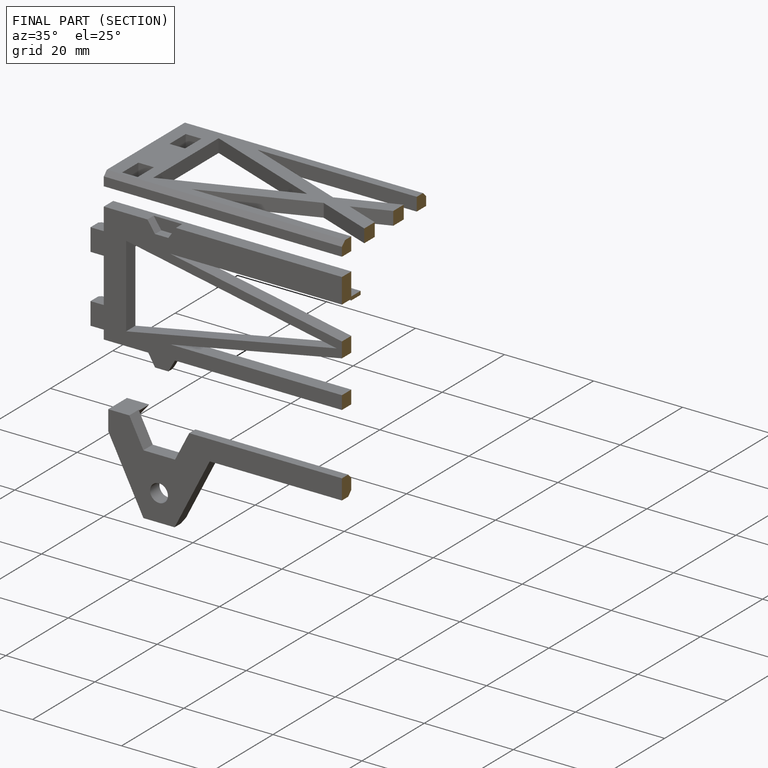
[diagram: finished part — half-section view (interior)]
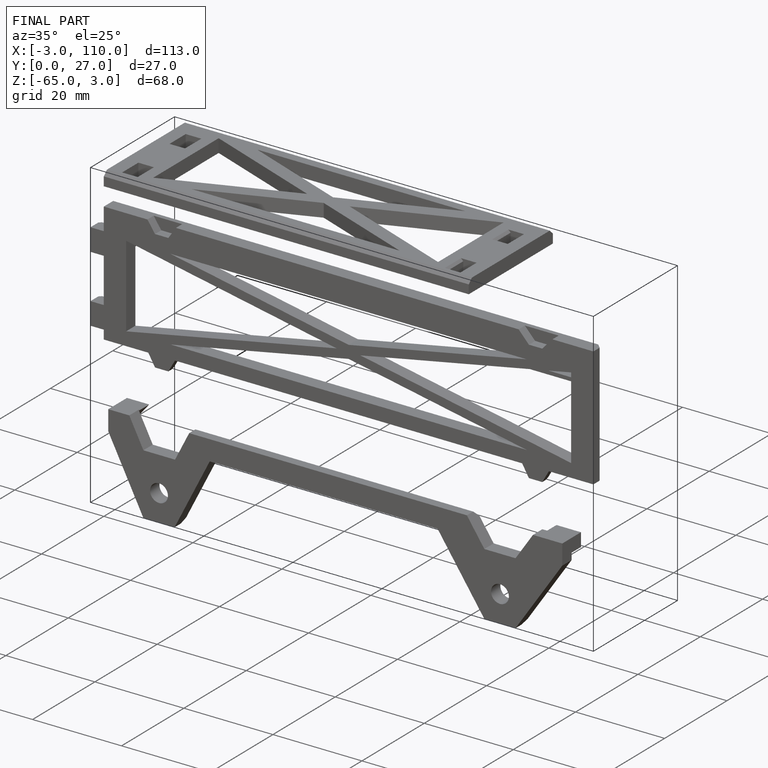
[diagram: finished part — iso view with bounding-box wireframe]
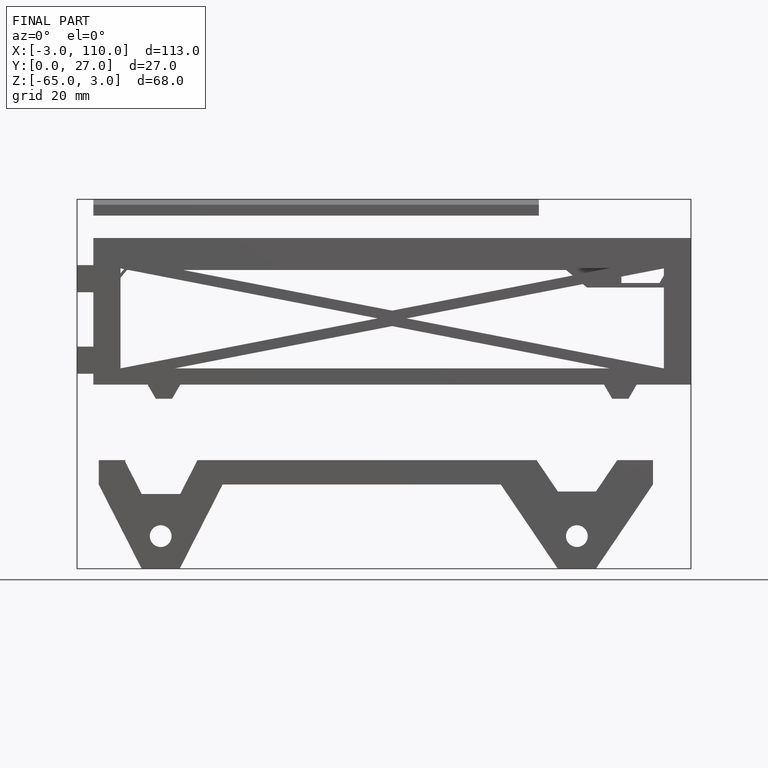
[diagram: finished part — front view with bounding-box wireframe]
